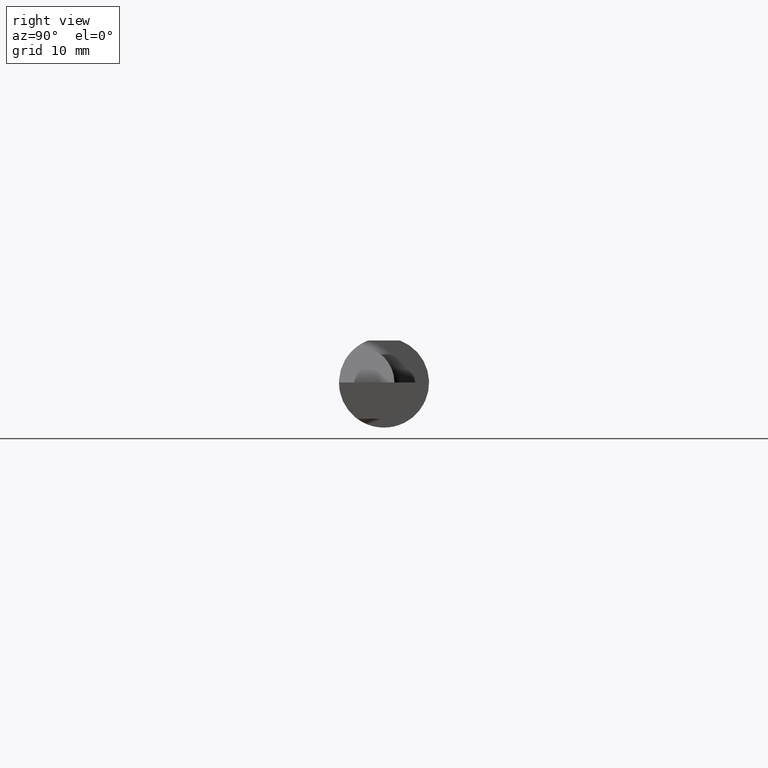
[diagram: clean part render]
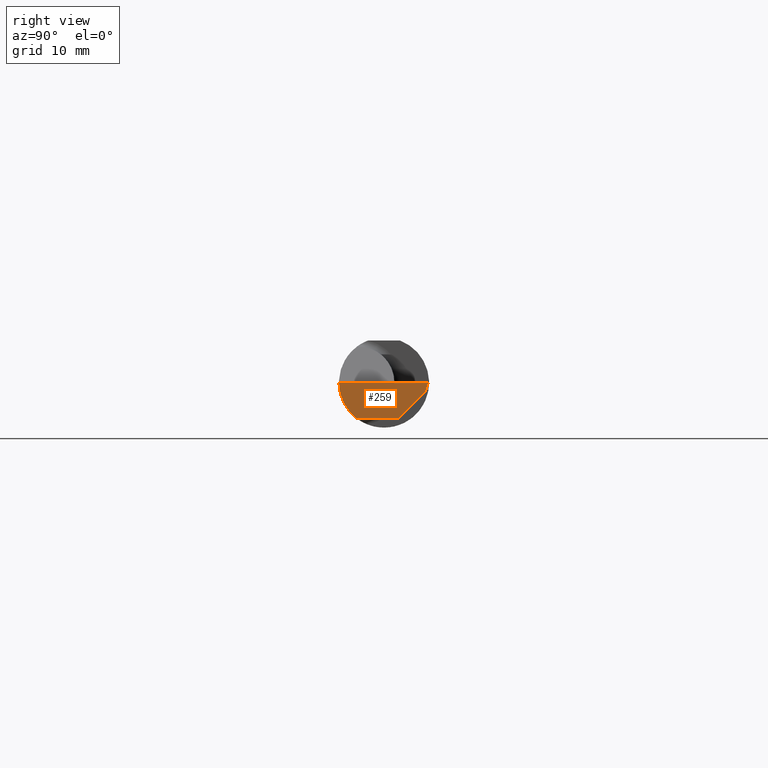
[diagram: same view with one face highlighted and labeled with its STEP entity id]
A machine part, right view. The second image highlights one B-rep face of the part: STEP entity #259.
In plain terms, the highlighted planar face has unit normal (-0.9995, 0.0174, 0.0262).
Its self-contained STEP definition (entity closure, byte-faithful):
#1 = CARTESIAN_POINT ( 'NONE',  ( 2.500000000000000000, 0.1539000000000000090, 0.000000000000000000 ) ) ;
#69 = CARTESIAN_POINT ( 'NONE',  ( 2.493277140361873201, -0.1561000000000000165, -0.05008759057876776416 ) ) ;
#105 = CARTESIAN_POINT ( 'NONE',  ( 2.494588929872255001, -0.1561000000000000443, 0.000000000000000000 ) ) ;
#109 = CARTESIAN_POINT ( 'NONE',  ( 2.500000000000000000, 0.1539000000000000090, 0.000000000000000000 ) ) ;
#186 = LINE ( 'NONE', #771, #397 ) ;
#196 = ORIENTED_EDGE ( 'NONE', *, *, #1060, .F. ) ;
#221 = VERTEX_POINT ( 'NONE', #635 ) ;
#259 = ADVANCED_FACE ( 'NONE', ( #455 ), #779, .F. ) ;
#279 = CARTESIAN_POINT ( 'NONE',  ( 2.492458441733171881, -0.09060321336276837279, -0.1250000000000000278 ) ) ;
#285 = CARTESIAN_POINT ( 'NONE',  ( 2.499001794690755673, 0.1432258439880203515, -0.03099999999999999978 ) ) ;
#313 = CARTESIAN_POINT ( 'NONE',  ( 2.492495113650786021, -0.1336908980339254205, -0.09488266708345007017 ) ) ;
#355 = CARTESIAN_POINT ( 'NONE',  ( 2.492408115719126460, -0.09360841750841747411, -0.1249186702281520206 ) ) ;
#392 = ORIENTED_EDGE ( 'NONE', *, *, #572, .T. ) ;
#397 = VECTOR ( 'NONE', #527, 39.37007874015748143 ) ;
#399 = VECTOR ( 'NONE', #537, 39.37007874015748143 ) ;
#401 = AXIS2_PLACEMENT_3D ( 'NONE', #109, #785, #1083 ) ;
#444 = DIRECTION ( 'NONE',  ( -0.03043175897092292859, -0.3254173665140246419, -0.9450806556146477133 ) ) ;
#455 = FACE_OUTER_BOUND ( 'NONE', #894, .T. ) ;
#456 = CARTESIAN_POINT ( 'NONE',  ( 2.499907390804593899, 0.1529096977137292535, -0.002876046671974680051 ) ) ;
#461 = ORIENTED_EDGE ( 'NONE', *, *, #634, .T. ) ;
#507 = EDGE_CURVE ( 'NONE', #723, #221, #1027, .T. ) ;
#512 =( BOUNDED_CURVE ( )  B_SPLINE_CURVE ( 3, ( #355, #780, #279, #719 ),
 .UNSPECIFIED., .F., .T. ) 
 B_SPLINE_CURVE_WITH_KNOTS ( ( 4, 4 ),
 ( 0.5517985523994612951, 0.5878737167659243701 ),
 .UNSPECIFIED. ) 
 CURVE ( )  GEOMETRIC_REPRESENTATION_ITEM ( )  RATIONAL_B_SPLINE_CURVE ( ( 1.000000000000000000, 0.9998915514833921492, 0.9998915514833921492, 1.000000000000000000 ) ) 
 REPRESENTATION_ITEM ( '' )  );
#514 = CARTESIAN_POINT ( 'NONE',  ( 2.498907590953288960, 0.1410674343035965006, -0.03315840968442382991 ) ) ;
#517 = ORIENTED_EDGE ( 'NONE', *, *, #653, .F. ) ;
#520 = DIRECTION ( 'NONE',  ( -0.03084697155452407330, -0.7067702824630920366, -0.7067702824630894831 ) ) ;
#527 = DIRECTION ( 'NONE',  ( -0.01745240643727716603, -0.9998476951563912696, 0.000000000000000000 ) ) ;
#537 = DIRECTION ( 'NONE',  ( -0.01745240643727716257, -0.9998476951563912696, 1.869448656733061669E-16 ) ) ;
#572 = EDGE_CURVE ( 'NONE', #613, #818, #186, .T. ) ;
#613 = VERTEX_POINT ( 'NONE', #1 ) ;
#626 = CARTESIAN_POINT ( 'NONE',  ( 2.495673289801201733, 0.09357530910345747410, -0.1250000000000000278 ) ) ;
#634 = EDGE_CURVE ( 'NONE', #746, #700, #512, .T. ) ;
#635 = CARTESIAN_POINT ( 'NONE',  ( 2.494899167008080454, 0.04922584398801997663, -0.1250000000000000278 ) ) ;
#653 = EDGE_CURVE ( 'NONE', #613, #723, #955, .T. ) ;
#700 = VERTEX_POINT ( 'NONE', #974 ) ;
#707 = LINE ( 'NONE', #626, #399 ) ;
#719 = CARTESIAN_POINT ( 'NONE',  ( 2.492484680420020027, -0.08910000000000001252, -0.1250000000000000000 ) ) ;
#723 = VERTEX_POINT ( 'NONE', #285 ) ;
#737 = EDGE_CURVE ( 'NONE', #221, #700, #707, .T. ) ;
#746 = VERTEX_POINT ( 'NONE', #962 ) ;
#771 = CARTESIAN_POINT ( 'NONE',  ( 2.500000000000000000, 0.1539000000000000090, 0.000000000000000000 ) ) ;
#779 = PLANE ( 'NONE',  #401 ) ;
#780 = CARTESIAN_POINT ( 'NONE',  ( 2.492432917398131220, -0.09210618219364773152, -0.1249728871357007887 ) ) ;
#785 = DIRECTION ( 'NONE',  ( -0.9995050723230146650, 0.01744642593347468448, 0.02617694830787320806 ) ) ;
#818 = VERTEX_POINT ( 'NONE', #105 ) ;
#827 = CARTESIAN_POINT ( 'NONE',  ( 2.494588929872255001, -0.1561000000000000443, 0.000000000000000000 ) ) ;
#894 = EDGE_LOOP ( 'NONE', ( #461, #954, #997, #517, #392, #196 ) ) ;
#954 = ORIENTED_EDGE ( 'NONE', *, *, #737, .F. ) ;
#955 = LINE ( 'NONE', #456, #999 ) ;
#962 = CARTESIAN_POINT ( 'NONE',  ( 2.492408115719126460, -0.09360841750841747411, -0.1249186702281520206 ) ) ;
#974 = CARTESIAN_POINT ( 'NONE',  ( 2.492484680420020027, -0.08910000000000001252, -0.1250000000000000000 ) ) ;
#997 = ORIENTED_EDGE ( 'NONE', *, *, #507, .F. ) ;
#999 = VECTOR ( 'NONE', #444, 39.37007874015748854 ) ;
#1001 = CARTESIAN_POINT ( 'NONE',  ( 2.492408115719126460, -0.09360841750841747411, -0.1249186702281520206 ) ) ;
#1027 = LINE ( 'NONE', #514, #1029 ) ;
#1029 = VECTOR ( 'NONE', #520, 39.37007874015748854 ) ;
#1060 = EDGE_CURVE ( 'NONE', #746, #818, #1076, .T. ) ;
#1076 =( BOUNDED_CURVE ( )  B_SPLINE_CURVE ( 3, ( #1001, #313, #69, #827 ),
 .UNSPECIFIED., .F., .F. ) 
 B_SPLINE_CURVE_WITH_KNOTS ( ( 4, 4 ),
 ( 0.05521439950980804034, 0.9829226100289724100 ),
 .UNSPECIFIED. ) 
 CURVE ( )  GEOMETRIC_REPRESENTATION_ITEM ( )  RATIONAL_B_SPLINE_CURVE ( ( 1.000000000000000000, 0.9295565493311498395, 0.9295565493311498395, 1.000000000000000000 ) ) 
 REPRESENTATION_ITEM ( '' )  );
#1083 = DIRECTION ( 'NONE',  ( 0.02618093305822682959, 0.000000000000000000, 0.9996572206232497981 ) ) ;